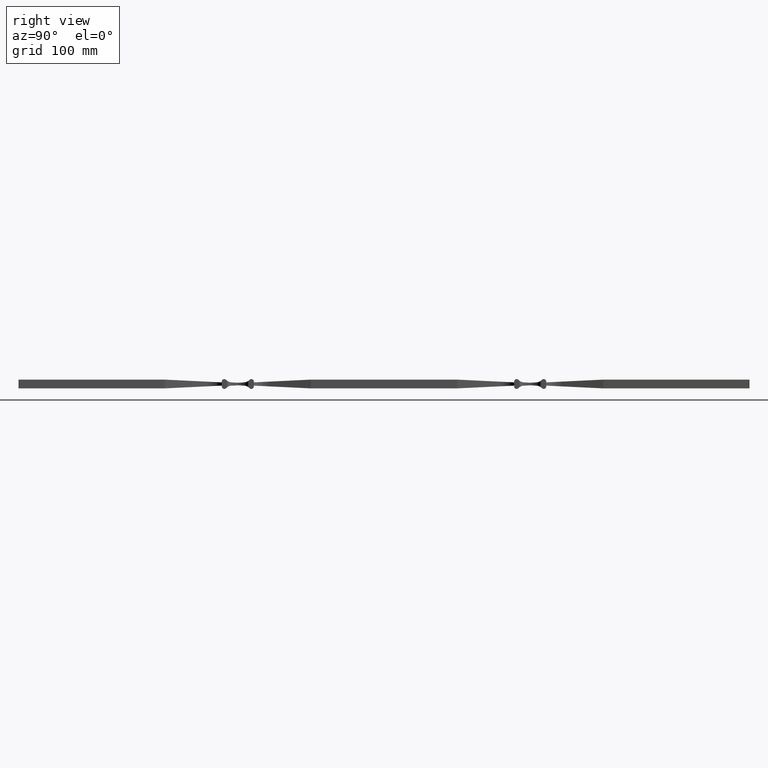
[diagram: clean part render]
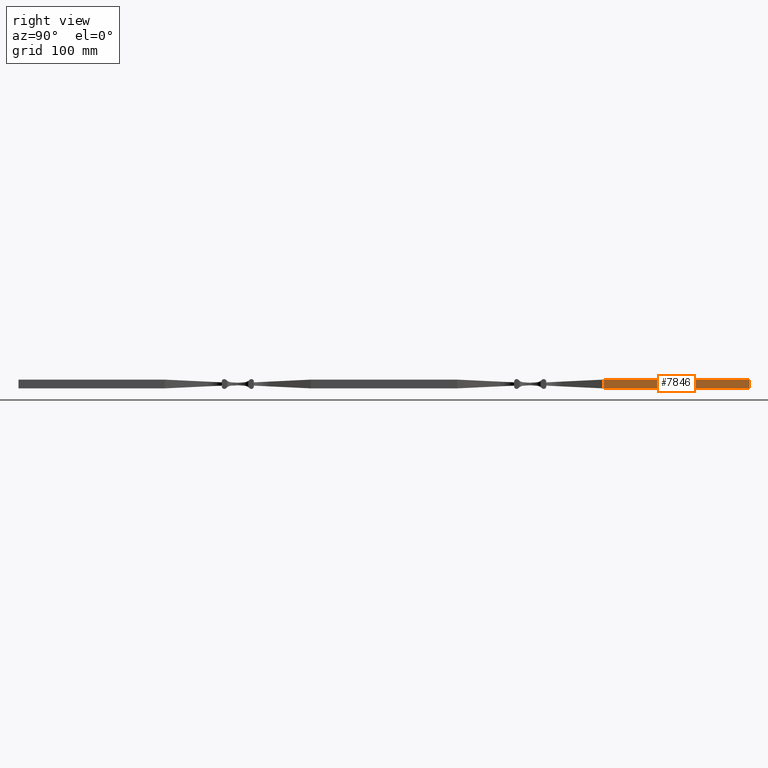
[diagram: same view with one face highlighted and labeled with its STEP entity id]
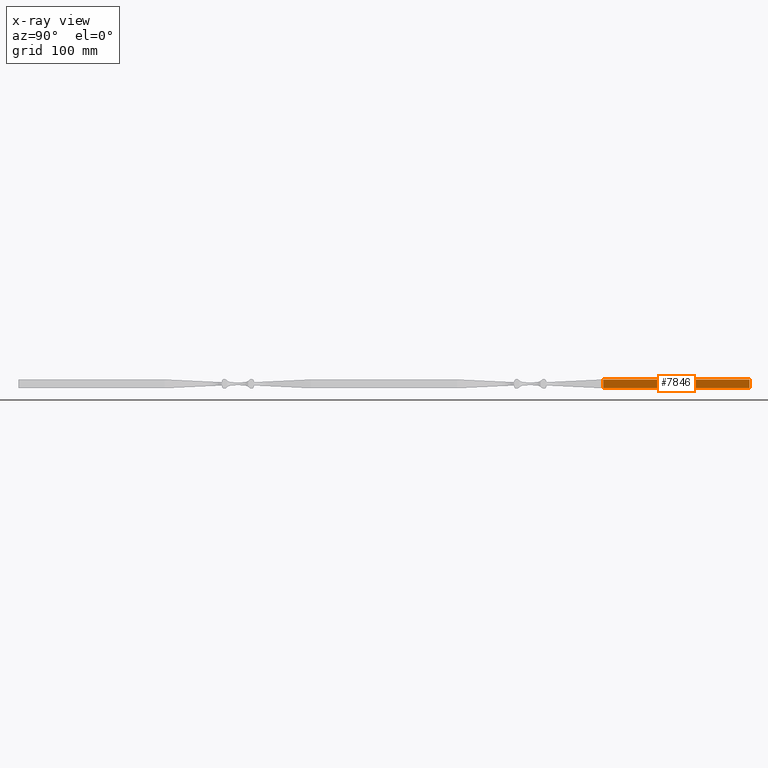
[diagram: x-ray of the same camera — body ghosted, the highlighted face saturated]
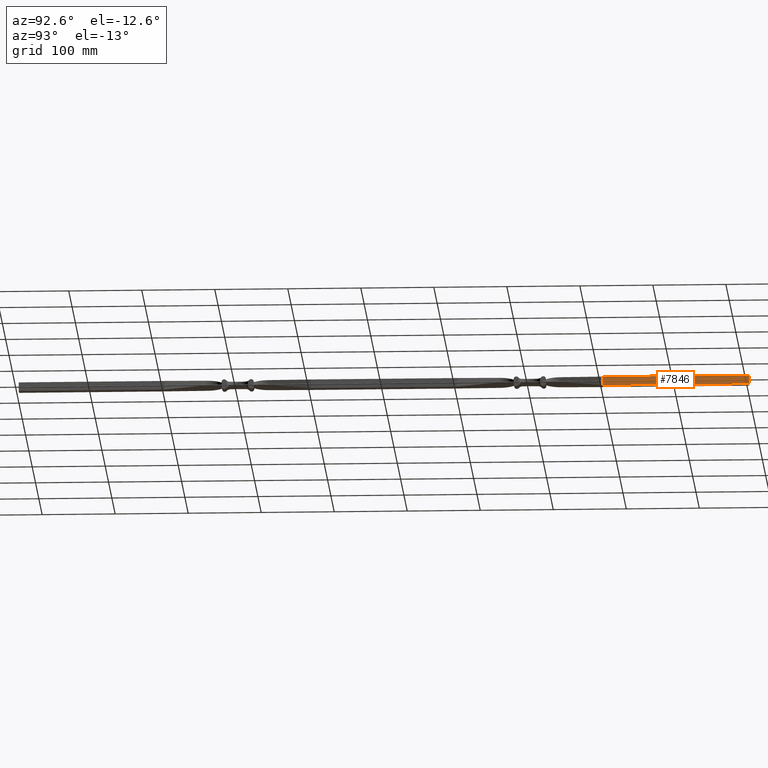
[diagram: same view with one face highlighted and labeled with its STEP entity id]
A machine part, right view. The second image highlights one B-rep face of the part: STEP entity #7846.
The next image is the same camera in x-ray: the body ghosted, the highlighted face saturated — about 0% of this face is hidden behind the body in this view.
A second angle (auxiliary view) of the same face is appended — the face is thin or edge-on in the first view.
In plain terms, the highlighted planar face has unit normal (-1, 0, 0).
Its self-contained STEP definition (entity closure, byte-faithful):
#669 = VECTOR ( 'NONE', #6833, 1000.000000000000000 ) ;
#704 = VECTOR ( 'NONE', #1904, 1000.000000000000000 ) ;
#790 = ORIENTED_EDGE ( 'NONE', *, *, #12990, .T. ) ;
#1692 = VECTOR ( 'NONE', #8132, 1000.000000000000000 ) ;
#1904 = DIRECTION ( 'NONE',  ( -0.000000000000000000, -1.000000000000000000, -0.000000000000000000 ) ) ;
#2142 = LINE ( 'NONE', #2398, #669 ) ;
#2299 = ORIENTED_EDGE ( 'NONE', *, *, #4986, .F. ) ;
#2398 = CARTESIAN_POINT ( 'NONE',  ( 5.999999999999999112, 100.0000000000000000, -6.000000000000000000 ) ) ;
#2650 = VERTEX_POINT ( 'NONE', #10101 ) ;
#3543 = EDGE_LOOP ( 'NONE', ( #9776, #790, #5418, #2299 ) ) ;
#3968 = VERTEX_POINT ( 'NONE', #5318 ) ;
#4274 = LINE ( 'NONE', #10263, #704 ) ;
#4459 = CARTESIAN_POINT ( 'NONE',  ( 6.000000000000000000, 100.0000000000000000, -6.000000000000000000 ) ) ;
#4555 = DIRECTION ( 'NONE',  ( -1.000000000000000000, 0.000000000000000000, 7.228014483236697048E-17 ) ) ;
#4914 = CARTESIAN_POINT ( 'NONE',  ( 5.999999999999999112, 300.0000000000000000, -6.000000000000000000 ) ) ;
#4986 = EDGE_CURVE ( 'NONE', #13005, #5486, #7561, .T. ) ;
#5318 = CARTESIAN_POINT ( 'NONE',  ( 6.000000000000000000, 300.0000000000000000, 6.000000000000000000 ) ) ;
#5418 = ORIENTED_EDGE ( 'NONE', *, *, #7826, .T. ) ;
#5486 = VERTEX_POINT ( 'NONE', #4459 ) ;
#5951 = CARTESIAN_POINT ( 'NONE',  ( 5.999999999999999112, 300.0000000000000000, -6.000000000000000000 ) ) ;
#5974 = DIRECTION ( 'NONE',  ( -0.000000000000000000, -1.000000000000000000, -0.000000000000000000 ) ) ;
#6718 = EDGE_CURVE ( 'NONE', #3968, #13005, #12469, .T. ) ;
#6833 = DIRECTION ( 'NONE',  ( -7.228014483236695816E-17, -0.000000000000000000, -1.000000000000000000 ) ) ;
#6875 = CARTESIAN_POINT ( 'NONE',  ( 5.999999999999999112, 616.9705627484770503, -6.000000000000000000 ) ) ;
#7561 = LINE ( 'NONE', #11277, #11283 ) ;
#7826 = EDGE_CURVE ( 'NONE', #2650, #5486, #2142, .T. ) ;
#7846 = ADVANCED_FACE ( 'NONE', ( #8499 ), #11003, .F. ) ;
#8073 = AXIS2_PLACEMENT_3D ( 'NONE', #6875, #4555, #11874 ) ;
#8132 = DIRECTION ( 'NONE',  ( -7.228014483236697048E-17, 0.000000000000000000, -1.000000000000000000 ) ) ;
#8499 = FACE_OUTER_BOUND ( 'NONE', #3543, .T. ) ;
#9776 = ORIENTED_EDGE ( 'NONE', *, *, #6718, .F. ) ;
#10101 = CARTESIAN_POINT ( 'NONE',  ( 6.000000000000000000, 100.0000000000000000, 6.000000000000000000 ) ) ;
#10263 = CARTESIAN_POINT ( 'NONE',  ( 6.000000000000000000, 616.9705627484770503, 6.000000000000000000 ) ) ;
#11003 = PLANE ( 'NONE',  #8073 ) ;
#11277 = CARTESIAN_POINT ( 'NONE',  ( 5.999999999999999112, 616.9705627484770503, -6.000000000000000000 ) ) ;
#11283 = VECTOR ( 'NONE', #5974, 1000.000000000000000 ) ;
#11874 = DIRECTION ( 'NONE',  ( 7.228014483236697048E-17, 0.000000000000000000, 1.000000000000000000 ) ) ;
#12469 = LINE ( 'NONE', #5951, #1692 ) ;
#12990 = EDGE_CURVE ( 'NONE', #3968, #2650, #4274, .T. ) ;
#13005 = VERTEX_POINT ( 'NONE', #4914 ) ;